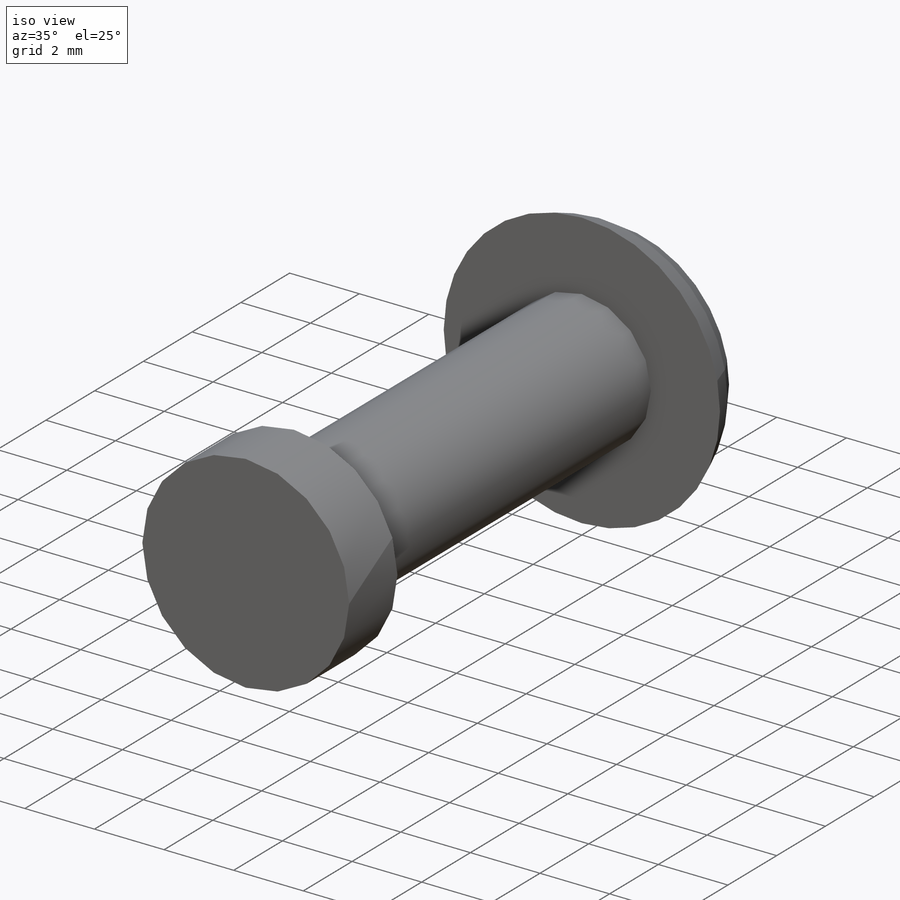
[diagram: iso view]
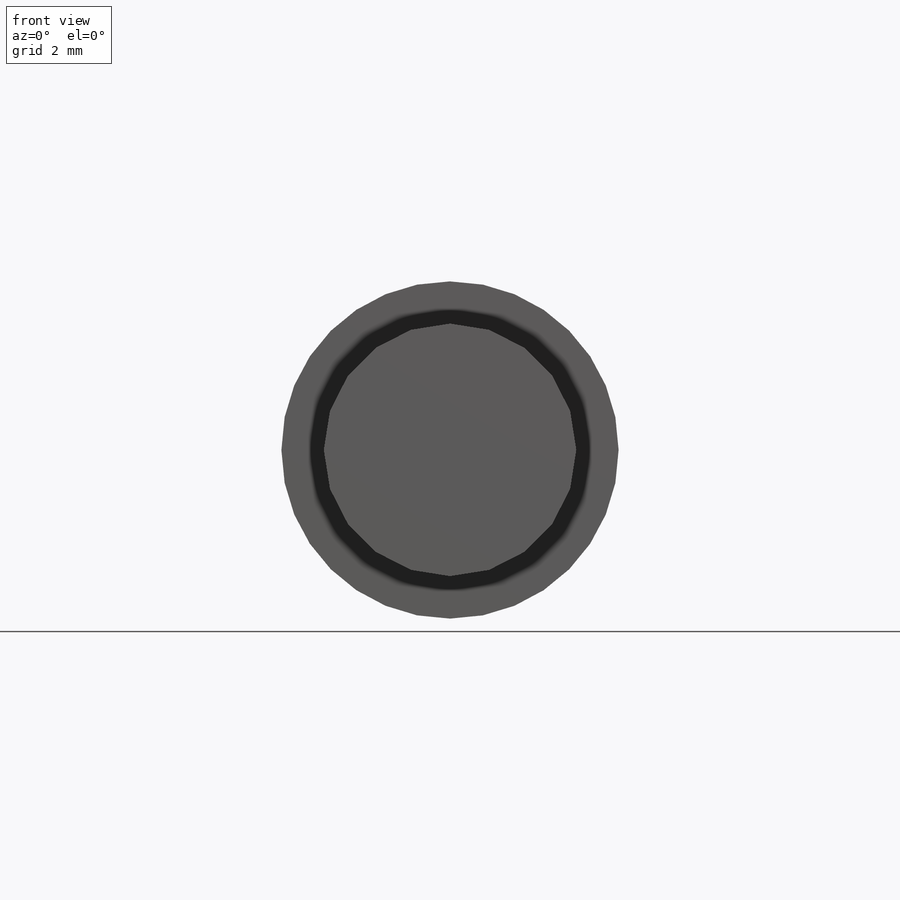
[diagram: front view]
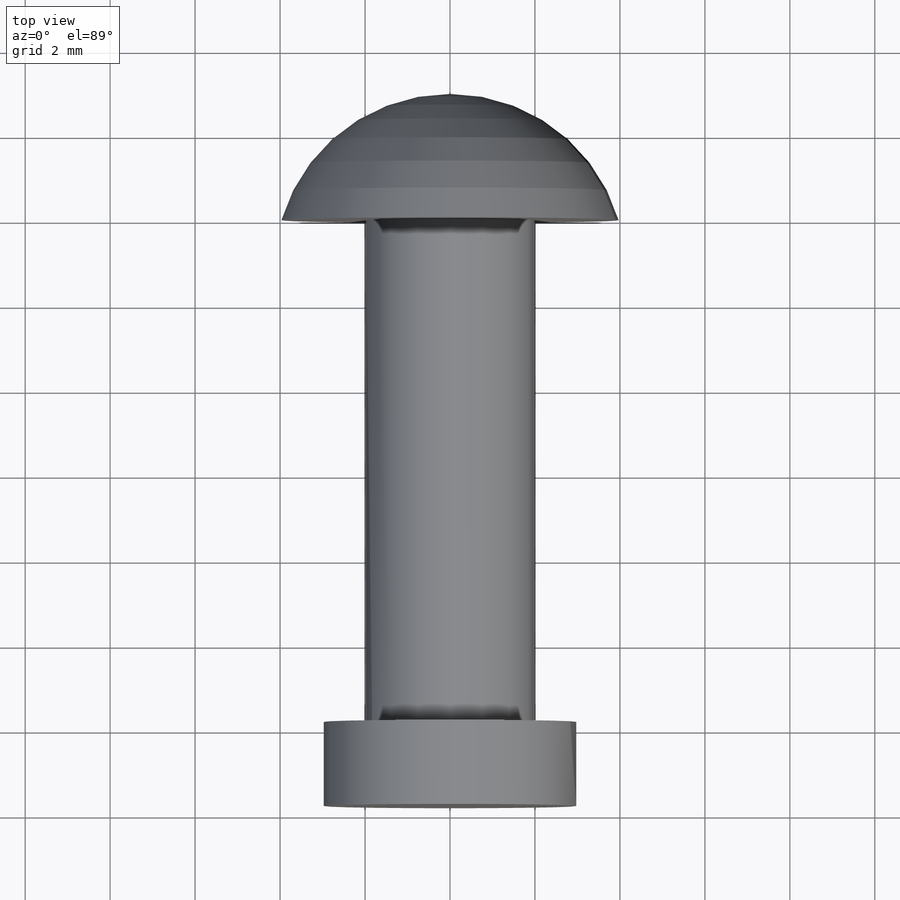
[diagram: top view]
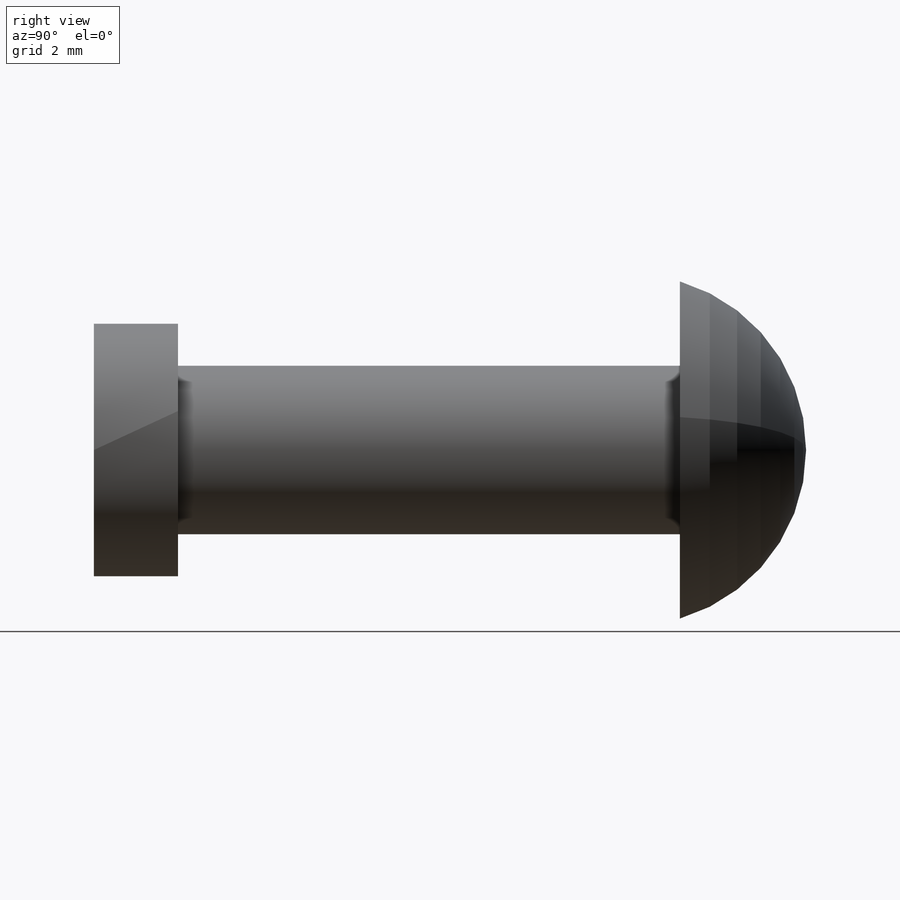
[diagram: right view]
SOLIDWORKS PART (.sldprt)
format: sldprt  version: not decoded by parser v0  size: 447,488 bytes
history: native  units: mm
features: plane x3, sketch x3, extrude x2, material x1, revolve x1, fillet x1 + 1 further entry (+9 scaffold rows collapsed)
feature tree (21):
  scaffold x9  (default folders/planes/origin — collapsed)
  material  "6061 Alloy"
  plane  "Plane1"
  plane  "Plane2"
  plane  "Plane3"
  "Design Table"
  sketch  "Sketch1"  dims[Diameter=~3.96875mm]
  extrude  "Ext Shank"  Depth=13.7922mm Length=13.7922mm
  sketch  "Sketch2"  dims[c1.Head Dia=~37.996037mm c1.Head Thick=~3.631609mm c2.Head Dia=7.9375mm c2.Head Thick=2.9718mm]
  revolve  "Rev Head"  Angle=360deg
  sketch  "Sketch3"  dims[D1=5.9436mm]
  extrude  "Ext Clinch"  Depth=11.811mm
  fillet  "Fillet1"  Radius=0.127mm
decode coverage: 7 of 7 modeling features carry decoded parameters; 1 rows unclassified (native names shown)
note: ~ marks probable driven/reference dimensions
note: suppression state not decoded; provenance and decode notes live in map.json
